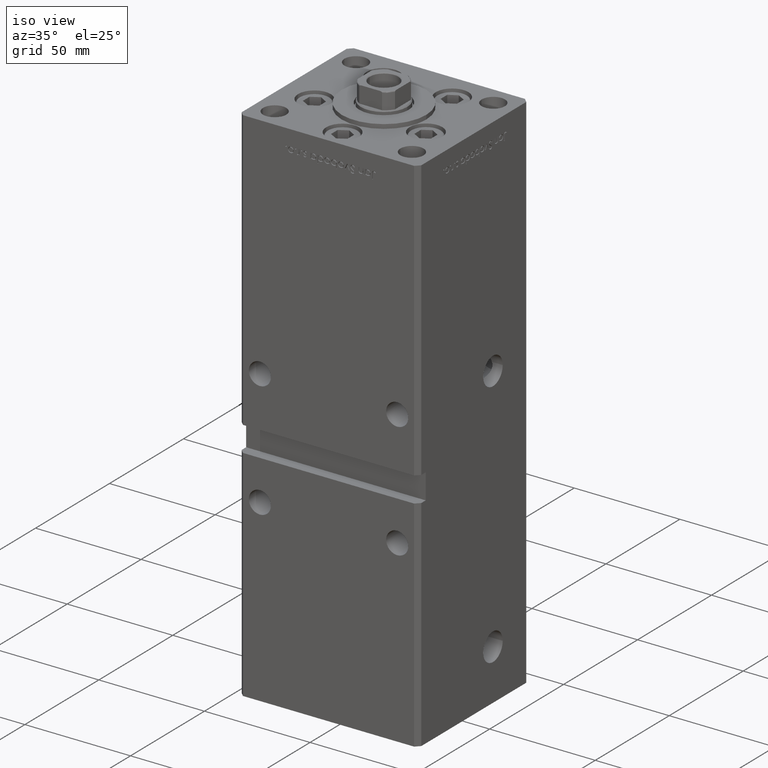
[diagram: clean part render]
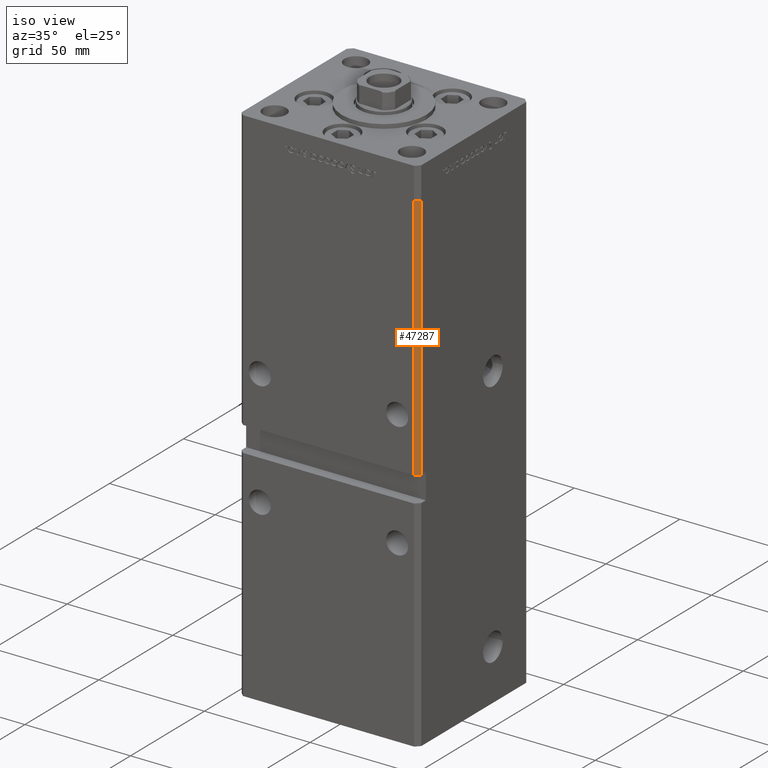
[diagram: same view with one face highlighted and labeled with its STEP entity id]
A machine part, iso view. The second image highlights one B-rep face of the part: STEP entity #47287.
In plain terms, the highlighted planar face has unit normal (0.7071, -0.7071, 0).
Its self-contained STEP definition (entity closure, byte-faithful):
#669 = CARTESIAN_POINT ( 'NONE',  ( 42.49999999999998579, -35.50000000000000711, 218.5000000000000000 ) ) ;
#2176 = LINE ( 'NONE', #669, #9390 ) ;
#2760 = DIRECTION ( 'NONE',  ( -0.7071067811865474617, -0.7071067811865474617, 0.000000000000000000 ) ) ;
#3480 = CARTESIAN_POINT ( 'NONE',  ( 40.49999999999998579, -37.50000000000000711, 218.5000000000000000 ) ) ;
#4924 = CARTESIAN_POINT ( 'NONE',  ( 40.49999999999998579, -37.50000000000000711, 218.5000000000000000 ) ) ;
#5084 = VERTEX_POINT ( 'NONE', #4924 ) ;
#6796 = LINE ( 'NONE', #11906, #9659 ) ;
#9390 = VECTOR ( 'NONE', #51538, 1000.000000000000114 ) ;
#9659 = VECTOR ( 'NONE', #2760, 1000.000000000000114 ) ;
#10493 = ORIENTED_EDGE ( 'NONE', *, *, #42139, .F. ) ;
#10537 = AXIS2_PLACEMENT_3D ( 'NONE', #47191, #37323, #25155 ) ;
#11906 = CARTESIAN_POINT ( 'NONE',  ( 42.49999999999998579, -35.50000000000000711, 101.0000000000000284 ) ) ;
#12401 = VERTEX_POINT ( 'NONE', #30967 ) ;
#13627 = CARTESIAN_POINT ( 'NONE',  ( 42.49999999999999289, -35.50000000000000711, 101.0000000000000284 ) ) ;
#16796 = VERTEX_POINT ( 'NONE', #13627 ) ;
#17049 = FACE_OUTER_BOUND ( 'NONE', #28696, .T. ) ;
#19961 = CARTESIAN_POINT ( 'NONE',  ( 42.49999999999998579, -35.50000000000000711, 218.5000000000000000 ) ) ;
#20134 = ORIENTED_EDGE ( 'NONE', *, *, #39885, .T. ) ;
#20712 = EDGE_CURVE ( 'NONE', #12401, #16796, #36445, .T. ) ;
#22120 = EDGE_CURVE ( 'NONE', #5084, #51502, #37955, .T. ) ;
#25155 = DIRECTION ( 'NONE',  ( 0.7071067811865474617, 0.7071067811865474617, 0.000000000000000000 ) ) ;
#28696 = EDGE_LOOP ( 'NONE', ( #10493, #32907, #20134, #47063 ) ) ;
#30967 = CARTESIAN_POINT ( 'NONE',  ( 42.49999999999998579, -35.50000000000000711, 218.5000000000000000 ) ) ;
#32697 = CARTESIAN_POINT ( 'NONE',  ( 40.49999999999998579, -37.50000000000000711, 101.0000000000000284 ) ) ;
#32907 = ORIENTED_EDGE ( 'NONE', *, *, #20712, .F. ) ;
#33555 = PLANE ( 'NONE',  #10537 ) ;
#36445 = LINE ( 'NONE', #19961, #39094 ) ;
#37323 = DIRECTION ( 'NONE',  ( 0.7071067811865475727, -0.7071067811865475727, 0.000000000000000000 ) ) ;
#37955 = LINE ( 'NONE', #3480, #51194 ) ;
#39094 = VECTOR ( 'NONE', #52881, 1000.000000000000000 ) ;
#39885 = EDGE_CURVE ( 'NONE', #12401, #5084, #2176, .T. ) ;
#41998 = DIRECTION ( 'NONE',  ( -0.000000000000000000, -0.000000000000000000, -1.000000000000000000 ) ) ;
#42139 = EDGE_CURVE ( 'NONE', #16796, #51502, #6796, .T. ) ;
#47063 = ORIENTED_EDGE ( 'NONE', *, *, #22120, .T. ) ;
#47191 = CARTESIAN_POINT ( 'NONE',  ( 42.49999999999998579, -35.50000000000000711, 218.5000000000000000 ) ) ;
#47287 = ADVANCED_FACE ( 'NONE', ( #17049 ), #33555, .T. ) ;
#51194 = VECTOR ( 'NONE', #41998, 1000.000000000000000 ) ;
#51502 = VERTEX_POINT ( 'NONE', #32697 ) ;
#51538 = DIRECTION ( 'NONE',  ( -0.7071067811865474617, -0.7071067811865474617, 0.000000000000000000 ) ) ;
#52881 = DIRECTION ( 'NONE',  ( -0.000000000000000000, -0.000000000000000000, -1.000000000000000000 ) ) ;